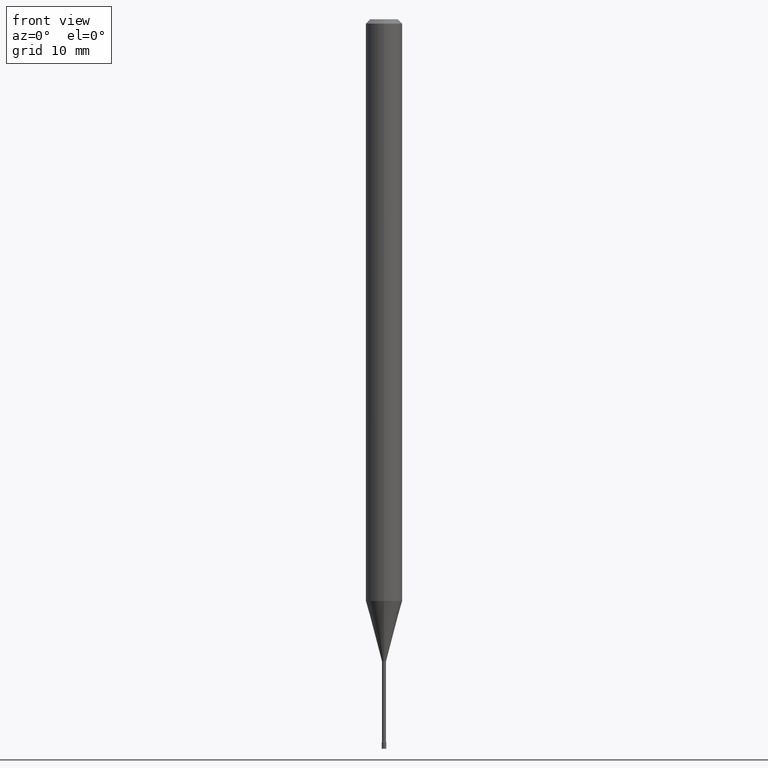
[diagram: clean part render]
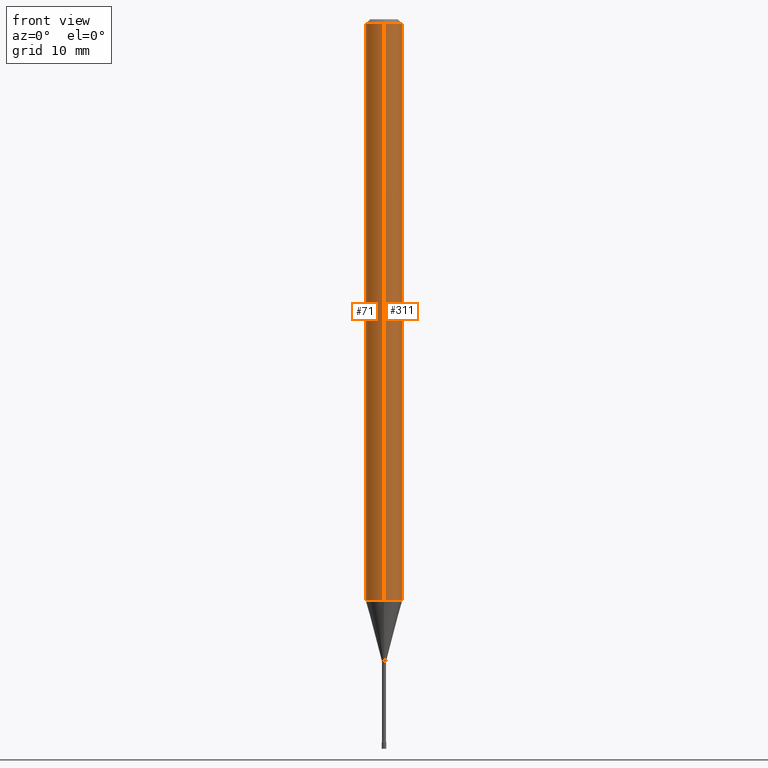
[diagram: same view with one multi-face feature highlighted, each face labeled with its STEP entity id]
A machine part, front view. The highlighted faces form ONE feature: a constant-radius fillet chain: 2 tangent blend faces with common blend radius 1.5875 mm. The faces share edges in the B-rep.
Their STEP definitions:
[1] entity #71 (Cylinder):
#6 = CARTESIAN_POINT ( 'NONE',  ( -4.364351673553912750E-16, -0.06250000000000005551, -0.01499999999999981209 ) ) ;
#18 = EDGE_CURVE ( 'NONE', #304, #89, #359, .T. ) ;
#32 = CIRCLE ( 'NONE', #83, 0.06250000000000000000 ) ;
#71 = ADVANCED_FACE ( 'NONE', ( #224 ), #390, .T. ) ;
#83 = AXIS2_PLACEMENT_3D ( 'NONE', #369, #454, #133 ) ;
#89 = VERTEX_POINT ( 'NONE', #264 ) ;
#93 = ORIENTED_EDGE ( 'NONE', *, *, #18, .F. ) ;
#94 = CARTESIAN_POINT ( 'NONE',  ( 4.440892098501112297E-16, 0.06249999999999304029, -1.993057782720306426 ) ) ;
#133 = DIRECTION ( 'NONE',  ( -6.982962677686265922E-15, -1.000000000000000000, 4.370956789862821150E-15 ) ) ;
#139 = EDGE_CURVE ( 'NONE', #304, #462, #32, .T. ) ;
#143 = DIRECTION ( 'NONE',  ( -2.445476508670885484E-29, 3.491470308445155014E-15, 1.000000000000000000 ) ) ;
#148 = DIRECTION ( 'NONE',  ( -2.445476508670885484E-29, 3.491470308445154620E-15, 1.000000000000000000 ) ) ;
#212 = CARTESIAN_POINT ( 'NONE',  ( -4.364351673553916201E-16, -0.06250000000000000000, 2.182168942778221391E-16 ) ) ;
#224 = FACE_OUTER_BOUND ( 'NONE', #455, .T. ) ;
#226 = VECTOR ( 'NONE', #237, 39.37007874015748143 ) ;
#229 = CARTESIAN_POINT ( 'NONE',  ( 4.440892098500625669E-16, 0.06250000000000000000, -2.182168942778221391E-16 ) ) ;
#234 = AXIS2_PLACEMENT_3D ( 'NONE', #299, #503, #387 ) ;
#237 = DIRECTION ( 'NONE',  ( -2.445476508670885484E-29, 3.491470308445155014E-15, 1.000000000000000000 ) ) ;
#256 = VERTEX_POINT ( 'NONE', #6 ) ;
#263 = EDGE_CURVE ( 'NONE', #89, #256, #468, .T. ) ;
#264 = CARTESIAN_POINT ( 'NONE',  ( 4.440892098501117228E-16, 0.06249999999999995837, -0.01500000000000024751 ) ) ;
#279 = VECTOR ( 'NONE', #143, 39.37007874015748143 ) ;
#290 = EDGE_CURVE ( 'NONE', #462, #256, #471, .T. ) ;
#295 = ORIENTED_EDGE ( 'NONE', *, *, #263, .F. ) ;
#299 = CARTESIAN_POINT ( 'NONE',  ( 3.668214763006335565E-31, -5.237205462667742604E-17, -0.01500000000000003067 ) ) ;
#304 = VERTEX_POINT ( 'NONE', #94 ) ;
#359 = LINE ( 'NONE', #229, #226 ) ;
#369 = CARTESIAN_POINT ( 'NONE',  ( 4.873975988066190610E-29, -6.958702071383483423E-15, -1.993057782720306204 ) ) ;
#387 = DIRECTION ( 'NONE',  ( -6.982962677686265922E-15, -1.000000000000000000, 3.483106191921935554E-15 ) ) ;
#390 = CYLINDRICAL_SURFACE ( 'NONE', #517, 0.06250000000000000000 ) ;
#395 = DIRECTION ( 'NONE',  ( -6.982962677686265922E-15, -1.000000000000000000, 3.491470308445154226E-15 ) ) ;
#429 = ORIENTED_EDGE ( 'NONE', *, *, #290, .T. ) ;
#454 = DIRECTION ( 'NONE',  ( -2.445476508670885484E-29, 3.491470308445154620E-15, 1.000000000000000000 ) ) ;
#455 = EDGE_LOOP ( 'NONE', ( #93, #494, #429, #295 ) ) ;
#462 = VERTEX_POINT ( 'NONE', #480 ) ;
#468 = CIRCLE ( 'NONE', #234, 0.06250000000000000000 ) ;
#471 = LINE ( 'NONE', #212, #279 ) ;
#480 = CARTESIAN_POINT ( 'NONE',  ( -4.364351673553429079E-16, -0.06250000000000695277, -1.993057782720305759 ) ) ;
#494 = ORIENTED_EDGE ( 'NONE', *, *, #139, .T. ) ;
#503 = DIRECTION ( 'NONE',  ( -2.445476508670885484E-29, 3.491470308445154620E-15, 1.000000000000000000 ) ) ;
#506 = CARTESIAN_POINT ( 'NONE',  ( 0.000000000000000000, 0.000000000000000000, 0.000000000000000000 ) ) ;
#517 = AXIS2_PLACEMENT_3D ( 'NONE', #506, #148, #395 ) ;
[2] entity #311 (Cylinder):
#6 = CARTESIAN_POINT ( 'NONE',  ( -4.364351673553912750E-16, -0.06250000000000005551, -0.01499999999999981209 ) ) ;
#18 = EDGE_CURVE ( 'NONE', #304, #89, #359, .T. ) ;
#26 = DIRECTION ( 'NONE',  ( -2.445476508670885484E-29, 3.491470308445154620E-15, 1.000000000000000000 ) ) ;
#68 = AXIS2_PLACEMENT_3D ( 'NONE', #255, #26, #253 ) ;
#80 = EDGE_CURVE ( 'NONE', #256, #89, #491, .T. ) ;
#89 = VERTEX_POINT ( 'NONE', #264 ) ;
#94 = CARTESIAN_POINT ( 'NONE',  ( 4.440892098501112297E-16, 0.06249999999999304029, -1.993057782720306426 ) ) ;
#103 = AXIS2_PLACEMENT_3D ( 'NONE', #413, #370, #488 ) ;
#104 = CARTESIAN_POINT ( 'NONE',  ( 3.668214763006335565E-31, -5.237205462667742604E-17, -0.01500000000000003067 ) ) ;
#108 = DIRECTION ( 'NONE',  ( -2.445476508670885484E-29, 3.491470308445154620E-15, 1.000000000000000000 ) ) ;
#140 = CYLINDRICAL_SURFACE ( 'NONE', #68, 0.06250000000000000000 ) ;
#143 = DIRECTION ( 'NONE',  ( -2.445476508670885484E-29, 3.491470308445155014E-15, 1.000000000000000000 ) ) ;
#171 = ORIENTED_EDGE ( 'NONE', *, *, #290, .F. ) ;
#212 = CARTESIAN_POINT ( 'NONE',  ( -4.364351673553916201E-16, -0.06250000000000000000, 2.182168942778221391E-16 ) ) ;
#219 = ORIENTED_EDGE ( 'NONE', *, *, #18, .T. ) ;
#226 = VECTOR ( 'NONE', #237, 39.37007874015748143 ) ;
#229 = CARTESIAN_POINT ( 'NONE',  ( 4.440892098500625669E-16, 0.06250000000000000000, -2.182168942778221391E-16 ) ) ;
#230 = EDGE_CURVE ( 'NONE', #462, #304, #426, .T. ) ;
#237 = DIRECTION ( 'NONE',  ( -2.445476508670885484E-29, 3.491470308445155014E-15, 1.000000000000000000 ) ) ;
#253 = DIRECTION ( 'NONE',  ( -6.982962677686265922E-15, -1.000000000000000000, 3.491470308445154226E-15 ) ) ;
#255 = CARTESIAN_POINT ( 'NONE',  ( 0.000000000000000000, 0.000000000000000000, 0.000000000000000000 ) ) ;
#256 = VERTEX_POINT ( 'NONE', #6 ) ;
#258 = ORIENTED_EDGE ( 'NONE', *, *, #80, .F. ) ;
#264 = CARTESIAN_POINT ( 'NONE',  ( 4.440892098501117228E-16, 0.06249999999999995837, -0.01500000000000024751 ) ) ;
#270 = DIRECTION ( 'NONE',  ( -6.982962677686265922E-15, -1.000000000000000000, 3.483106191921935554E-15 ) ) ;
#279 = VECTOR ( 'NONE', #143, 39.37007874015748143 ) ;
#290 = EDGE_CURVE ( 'NONE', #462, #256, #471, .T. ) ;
#303 = FACE_OUTER_BOUND ( 'NONE', #342, .T. ) ;
#304 = VERTEX_POINT ( 'NONE', #94 ) ;
#311 = ADVANCED_FACE ( 'NONE', ( #303 ), #140, .T. ) ;
#342 = EDGE_LOOP ( 'NONE', ( #519, #219, #258, #171 ) ) ;
#347 = AXIS2_PLACEMENT_3D ( 'NONE', #104, #108, #270 ) ;
#359 = LINE ( 'NONE', #229, #226 ) ;
#370 = DIRECTION ( 'NONE',  ( -2.445476508670885484E-29, 3.491470308445154620E-15, 1.000000000000000000 ) ) ;
#413 = CARTESIAN_POINT ( 'NONE',  ( 4.873975988066190610E-29, -6.958702071383483423E-15, -1.993057782720306204 ) ) ;
#426 = CIRCLE ( 'NONE', #103, 0.06250000000000000000 ) ;
#462 = VERTEX_POINT ( 'NONE', #480 ) ;
#471 = LINE ( 'NONE', #212, #279 ) ;
#480 = CARTESIAN_POINT ( 'NONE',  ( -4.364351673553429079E-16, -0.06250000000000695277, -1.993057782720305759 ) ) ;
#488 = DIRECTION ( 'NONE',  ( -6.982962677686265922E-15, -1.000000000000000000, 4.370956789862821150E-15 ) ) ;
#491 = CIRCLE ( 'NONE', #347, 0.06250000000000000000 ) ;
#519 = ORIENTED_EDGE ( 'NONE', *, *, #230, .T. ) ;